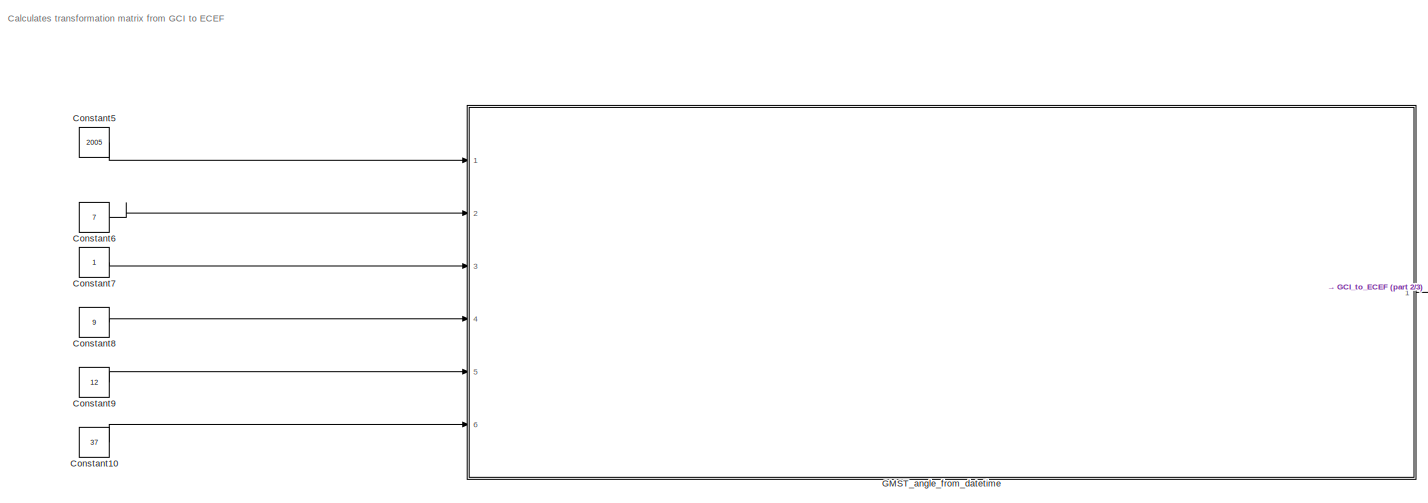
[diagram: root canvas - part 1/3, top center region]
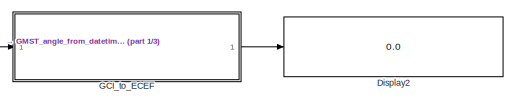
[diagram: root canvas - part 2/3, top right region]
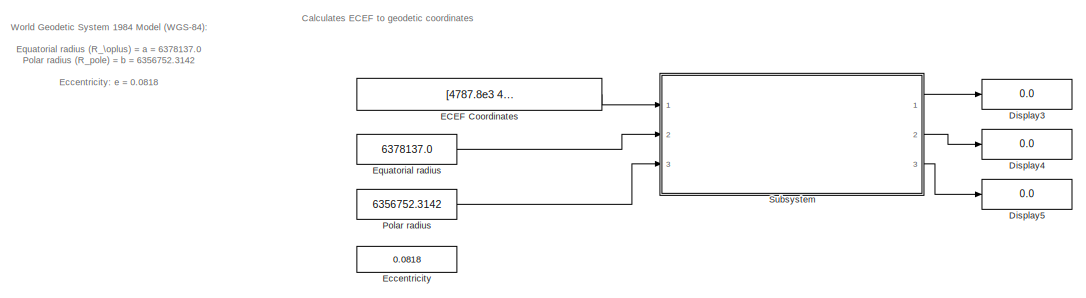
[diagram: root canvas - part 3/3, bottom left region]
MODEL slx_a7fdb47ea813
KIND model
CONFIG AbsTol = auto
CONFIG EnableMultiTasking = off
CONFIG FixedStep = auto
CONFIG MaxStep = auto
CONFIG MinStep = auto
CONFIG RelTol = 1e-3
CONFIG SampleTimeConstraint = Unconstrained
CONFIG SolverName = VariableStepAuto
CONFIG StartTime = 0.0
CONFIG StopTime = 10.0
BLOCK [Constant] Constant10
  Value = 37
BLOCK [Constant] Constant5
  Value = 2005
BLOCK [Constant] Constant6
  Value = 7
BLOCK [Constant] Constant7
BLOCK [Constant] Constant8
  Value = 9
BLOCK [Constant] Constant9
  Value = 12
BLOCK [Display] Display2
  Decimation = 1
  Ports = [1]
BLOCK [Display] Display3
  Decimation = 1
  Ports = [1]
BLOCK [Display] Display4
  Decimation = 1
  Ports = [1]
BLOCK [Display] Display5
  Decimation = 1
  Ports = [1]
BLOCK [Constant] ECEF Coordinates
  Value = [4787.8e3 4787.8e3 10000]
BLOCK [Constant] Eccentricity
  Value = 0.0818
BLOCK [Constant] Equatorial radius
  Value = 6378137.0
BLOCK [SubSystem] GCI_to_ECEF
  Ports = [1, 1]
  ReferencedSubsystem = GCI_to_ECEF
  RequestExecContextInheritance = off
BLOCK [SubSystem] GMST_angle_from_datetime 
  Ports = [6, 1]
  ReferencedSubsystem = GMST_angle_from_datetime
  RequestExecContextInheritance = off
BLOCK [Constant] Polar radius
  Value = 6356752.3142
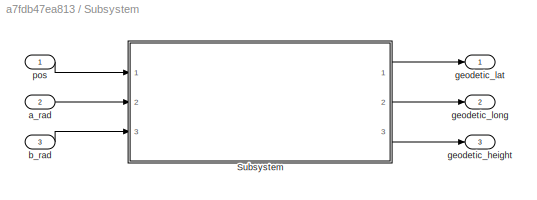
BLOCK [SubSystem] Subsystem
  Ports = [3, 3]
  RequestExecContextInheritance = off
BLOCK [SubSystem] Subsystem/Subsystem
  Ports = [3, 3]
  ReferencedSubsystem = ECEF_coords_to_geodetic
  RequestExecContextInheritance = off
BLOCK [Inport] Subsystem/a_rad
  Port = 2
BLOCK [Inport] Subsystem/b_rad
  Port = 3
BLOCK [Outport] Subsystem/geodetic_height
  Port = 3
BLOCK [Outport] Subsystem/geodetic_lat
BLOCK [Outport] Subsystem/geodetic_long
  Port = 2
BLOCK [Inport] Subsystem/pos
ANNOTATION (root): Calculates ECEF to geodetic coordinates
ANNOTATION (root): Calculates transformation matrix from GCI to ECEF
ANNOTATION (root): World Geodetic System 1984 Model (WGS-84): Equatorial radius (R_\oplus) = a = 6378137.0 Polar radius (R_pole) = b = 6356752.3142 Eccentricity: e = 0.0818
LINE Constant10:1 -> GMST_angle_from_datetime :6
LINE Constant5:1 -> GMST_angle_from_datetime :1
LINE Constant6:1 -> GMST_angle_from_datetime :2
LINE Constant7:1 -> GMST_angle_from_datetime :3
LINE Constant8:1 -> GMST_angle_from_datetime :4
LINE Constant9:1 -> GMST_angle_from_datetime :5
LINE ECEF Coordinates:1 -> Subsystem:1
LINE Equatorial radius:1 -> Subsystem:2
LINE GCI_to_ECEF:1 -> Display2:1
LINE GMST_angle_from_datetime :1 -> GCI_to_ECEF:1
LINE Polar radius:1 -> Subsystem:3
LINE Subsystem/Subsystem:1 -> Subsystem/geodetic_lat:1
LINE Subsystem/Subsystem:2 -> Subsystem/geodetic_long:1
LINE Subsystem/Subsystem:3 -> Subsystem/geodetic_height:1
LINE Subsystem/a_rad:1 -> Subsystem/Subsystem:2
LINE Subsystem/b_rad:1 -> Subsystem/Subsystem:3
LINE Subsystem/pos:1 -> Subsystem/Subsystem:1
LINE Subsystem:1 -> Display3:1
LINE Subsystem:2 -> Display4:1
LINE Subsystem:3 -> Display5:1
